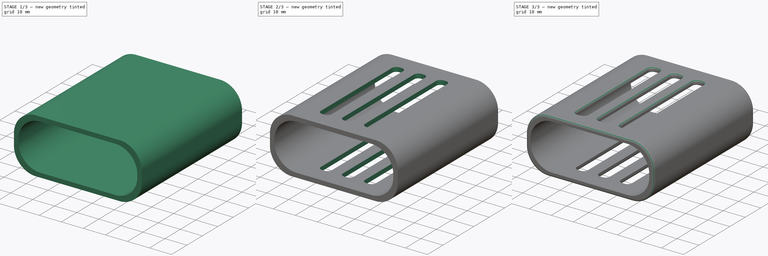
[diagram: build sequence overview — one tinted view per stage of 3, left to right]
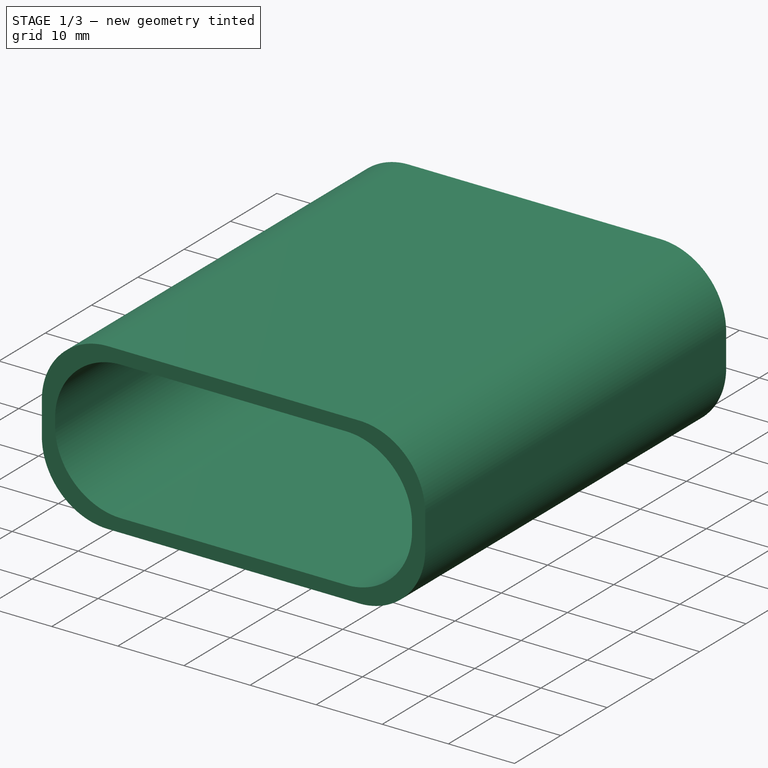
[diagram: stage 1 of 3 — iso view after this stage's code; geometry added in this stage tinted green]
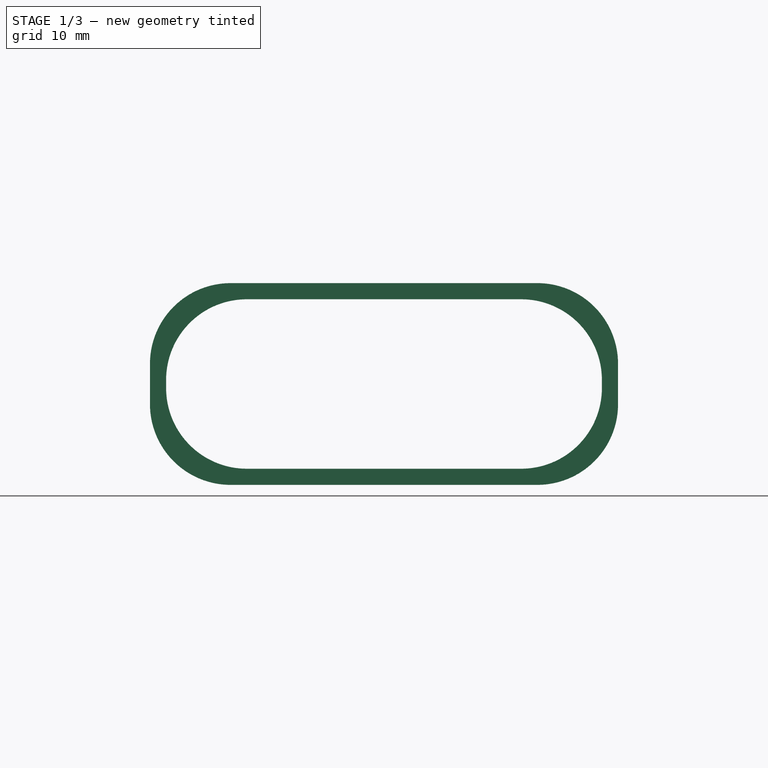
[diagram: stage 1 of 3 — front view after this stage's code; geometry added in this stage tinted green]
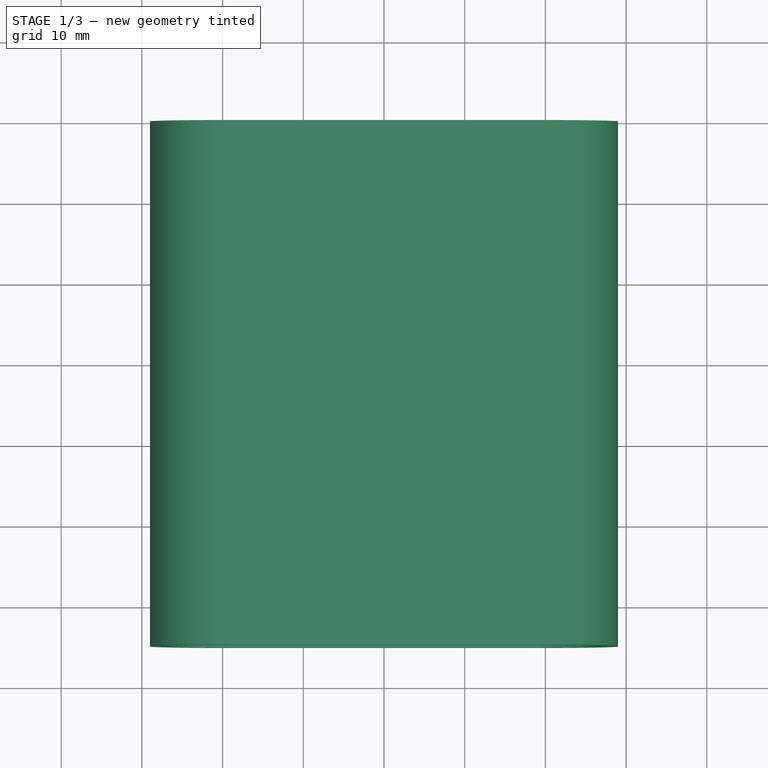
[diagram: stage 1 of 3 — top view after this stage's code; geometry added in this stage tinted green]
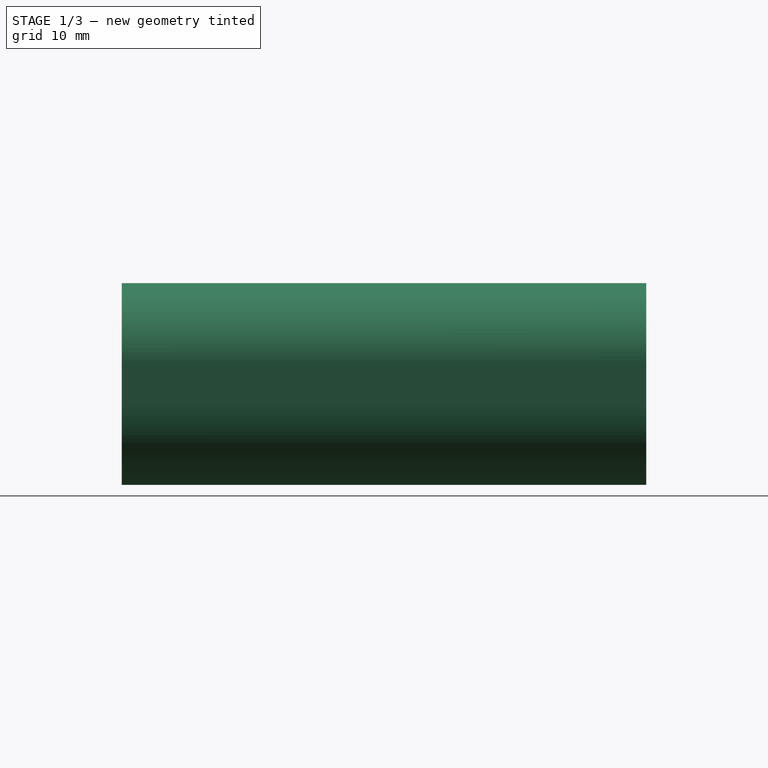
[diagram: stage 1 of 3 — right view after this stage's code; geometry added in this stage tinted green]
FCSTD DOCUMENT  (FreeCAD 0.20R29177 +426 (Git))
Label: Charger_Shell
License: All rights reserved
LicenseURL: http://en.wikipedia.org/wiki/All_rights_reserved
objects: PartDesign::Fillet×4, Sketcher::SketchObject×2, PartDesign::Pad×1, PartDesign::Pocket×1, PartDesign::Body×1
note: 15 computed .brp shape members not serialized (recipe doc carries the construction recipe); baked Part::Feature solids carry a one-line shape summary decoded from their .brp

FEATURE [Sketcher::SketchObject] Sketch
  FullyConstrained = true
  MapMode = 5
  Placement = pos=(0,0,0) rot=(1,0,0;1.5708rad)
  Support = -> [XZ_Plane]
  sketch-geometry (10):
    g0: LineSegment StartX=-27 StartY=-10.5 StartZ=0 EndX=-27 EndY=10.5 EndZ=0
    g1: LineSegment StartX=-27 StartY=10.5 StartZ=0 EndX=27 EndY=10.5 EndZ=0
    g2: LineSegment StartX=27 StartY=10.5 StartZ=0 EndX=27 EndY=-10.5 EndZ=0
    g3: LineSegment StartX=27 StartY=-10.5 StartZ=0 EndX=-27 EndY=-10.5 EndZ=0
    g4: GeomPoint X=0 Y=0 Z=0
    g5: LineSegment StartX=-29 StartY=-12.5 StartZ=0 EndX=-29 EndY=12.5 EndZ=0
    g6: LineSegment StartX=-29 StartY=12.5 StartZ=0 EndX=29 EndY=12.5 EndZ=0
    g7: LineSegment StartX=29 StartY=12.5 StartZ=0 EndX=29 EndY=-12.5 EndZ=0
    g8: LineSegment StartX=29 StartY=-12.5 StartZ=0 EndX=-29 EndY=-12.5 EndZ=0
    g9: GeomPoint X=0 Y=0 Z=0
  constraints (24):
    c: Coincident(g0,g1)
    c: Coincident(g1,g2)
    c: Coincident(g2,g3)
    c: Coincident(g3,g0)
    c: Horizontal(g1)
    c: Horizontal(g3)
    c: Vertical(g0)
    c: Vertical(g2)
    c: Symmetric(g1,g0,g4)
    c: Coincident(g4,g-1)
    c: DistanceY(g2,g2) = 21
    c: DistanceX(g1,g1) = 54
    c: Coincident(g5,g6)
    c: Coincident(g6,g7)
    c: Coincident(g7,g8)
    c: Coincident(g8,g5)
    c: Horizontal(g6)
    c: Horizontal(g8)
    c: Vertical(g5)
    c: Vertical(g7)
    c: Symmetric(g6,g5,g9)
    c: Coincident(g9,g4)
    c: DistanceX(g1,g6) = 2
    c: DistanceY(g1,g6) = 2
FEATURE [PartDesign::Pad] Pad
  Direction = (0,-1,2e-16)
  Length = 65
  Length2 = 10
  Placement = pos=(0,0,0) rot=(1,0,0;1.5708rad)
  Profile = -> Sketch
  ReferenceAxis = -> Sketch [N_Axis]
  Type = 0
FEATURE [PartDesign::Fillet] Fillet
  Base = -> Pad [Edge2,Edge20,Edge17,Edge1,Edge8,Edge13,Edge5,Edge14]
  BaseFeature = -> Pad
  Placement = pos=(0,0,0) rot=(1,0,0;1.5708rad)
  Radius = 10
  SupportTransform = false
  UseAllEdges = false
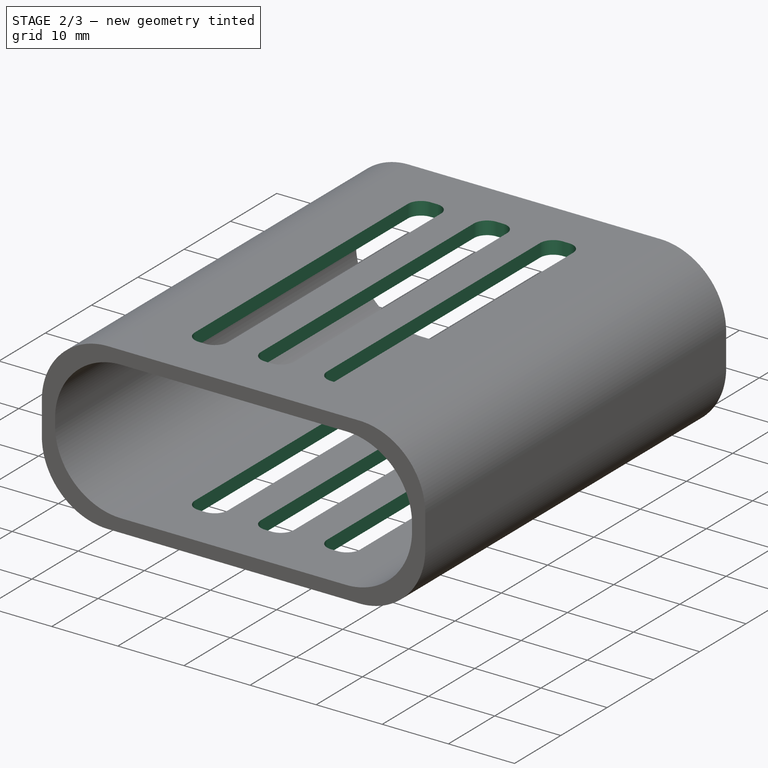
[diagram: stage 2 of 3 — iso view after this stage's code; geometry added in this stage tinted green]
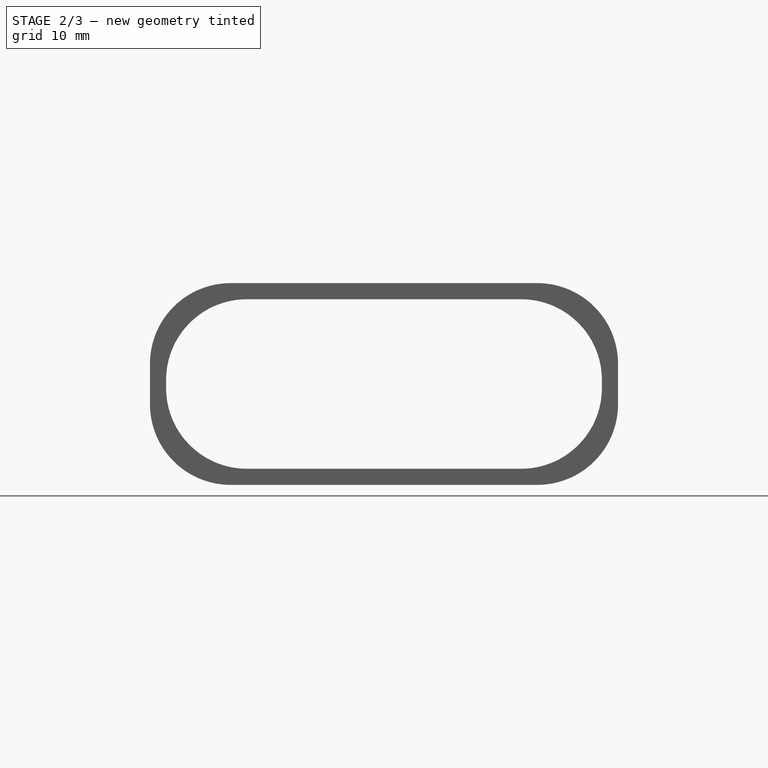
[diagram: stage 2 of 3 — front view after this stage's code; geometry added in this stage tinted green]
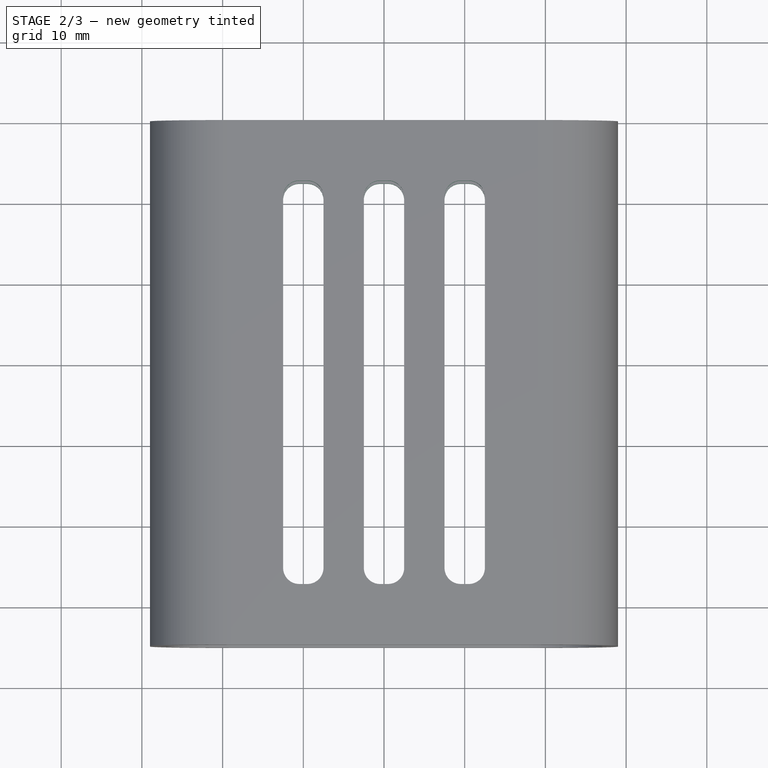
[diagram: stage 2 of 3 — top view after this stage's code; geometry added in this stage tinted green]
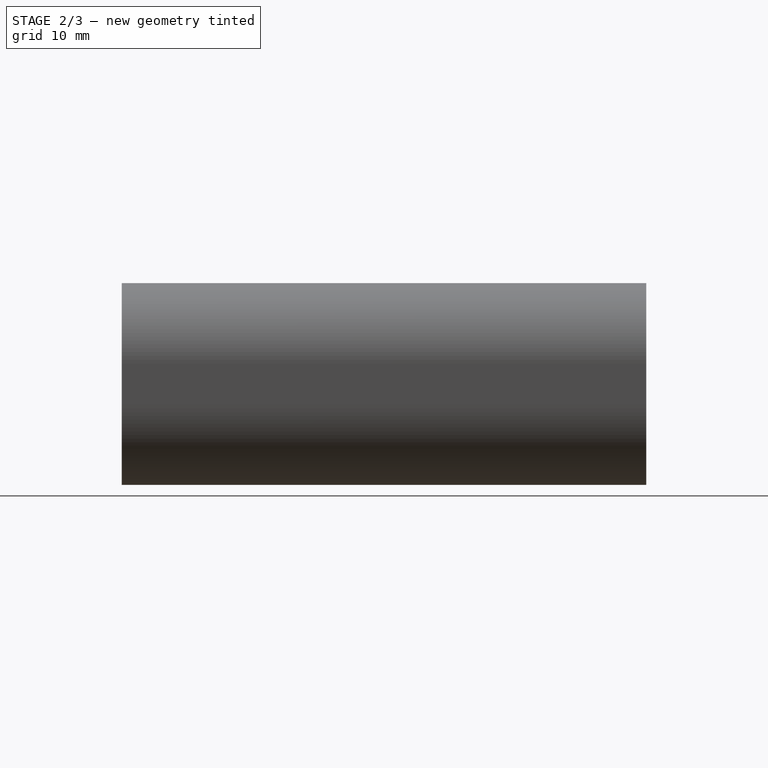
[diagram: stage 2 of 3 — right view after this stage's code; geometry added in this stage tinted green]
FEATURE [Sketcher::SketchObject] Sketch001
  ExternalGeometry = -> [Fillet]
  FullyConstrained = true
  MapMode = 5
  Placement = pos=(0,8.3e-15,12.5) rot=(0,0,1;3.14159rad)
  Support = -> [Fillet]
  sketch-geometry (16):
    g0: LineSegment StartX=2.5 StartY=57.5 StartZ=0 EndX=2.5 EndY=7.5 EndZ=0
    g1: LineSegment StartX=2.5 StartY=7.5 StartZ=0 EndX=-2.5 EndY=7.5 EndZ=0
    g2: LineSegment StartX=-2.5 StartY=7.5 StartZ=0 EndX=-2.5 EndY=57.5 EndZ=0
    g3: LineSegment StartX=-2.5 StartY=57.5 StartZ=0 EndX=2.5 EndY=57.5 EndZ=0
    g4: GeomPoint X=0 Y=32.5 Z=0
    g5: LineSegment StartX=-12.5 StartY=7.5 StartZ=0 EndX=-12.5 EndY=57.5 EndZ=0
    g6: LineSegment StartX=-12.5 StartY=57.5 StartZ=0 EndX=-7.5 EndY=57.5 EndZ=0
    g7: LineSegment StartX=-7.5 StartY=57.5 StartZ=0 EndX=-7.5 EndY=7.5 EndZ=0
    g8: LineSegment StartX=-7.5 StartY=7.5 StartZ=0 EndX=-12.5 EndY=7.5 EndZ=0
    g9: GeomPoint X=-10 Y=32.5 Z=0
    g10: LineSegment StartX=7.5 StartY=57.5 StartZ=0 EndX=7.5 EndY=7.5 EndZ=0
    g11: LineSegment StartX=7.5 StartY=7.5 StartZ=0 EndX=12.5 EndY=7.5 EndZ=0
    g12: LineSegment StartX=12.5 StartY=7.5 StartZ=0 EndX=12.5 EndY=57.5 EndZ=0
    g13: LineSegment StartX=12.5 StartY=57.5 StartZ=0 EndX=7.5 EndY=57.5 EndZ=0
    g14: GeomPoint X=10 Y=32.5 Z=0
    g15: GeomPoint X=19 Y=32.5 Z=0
  constraints (40):
    c: Coincident(g0,g1)
    c: Coincident(g1,g2)
    c: Coincident(g2,g3)
    c: Coincident(g3,g0)
    c: Horizontal(g1)
    c: Horizontal(g3)
    c: Vertical(g0)
    c: Vertical(g2)
    c: Symmetric(g1,g0,g4)
    c: Coincident(g5,g6)
    c: Coincident(g6,g7)
    c: Coincident(g7,g8)
    c: Coincident(g8,g5)
    c: Horizontal(g6)
    c: Horizontal(g8)
    c: Vertical(g5)
    c: Vertical(g7)
    c: Symmetric(g6,g5,g9)
    c: Coincident(g10,g11)
    c: Coincident(g11,g12)
    c: Coincident(g12,g13)
    c: Coincident(g13,g10)
    c: Horizontal(g11)
    c: Horizontal(g13)
    c: Vertical(g10)
    c: Vertical(g12)
    c: Symmetric(g11,g10,g14)
    c: Horizontal(g14,g4)
    c: Horizontal(g4,g9)
    c: Vertical(g4,g-1)
    c: Symmetric(g-3,g-3,g15)
    c: Horizontal(g15,g14)
    c: Equal(g7,g2)
    c: Equal(g2,g10)
    c: Equal(g8,g1)
    c: Equal(g1,g11)
    c: DistanceX(g1,g1) = 5
    c: DistanceY(g7,g7) = 50
    c: DistanceX(g9) = -10
    c: DistanceX(g4,g14) = 10
FEATURE [PartDesign::Pocket] Pocket
  BaseFeature = -> Fillet
  Direction = (0,-2e-16,-1)
  Length = 5
  Length2 = 5
  Placement = pos=(0,0,0) rot=(1,0,0;1.5708rad)
  Profile = -> Sketch001
  ReferenceAxis = -> Sketch001 [N_Axis]
  Type = 1
FEATURE [PartDesign::Fillet] Fillet001
  Base = -> Pocket [Edge112,Edge113,Edge119,Edge120,Edge114,Edge110,Edge117,Edge115,Edge109,Edge111,Edge116,Edge118,Edge102,Edge108,Edge105,Edge101,Edge100,Edge99,Edge107,Edge104,Edge97,Edge98,Edge103,Edge106]
  BaseFeature = -> Pocket
  Placement = pos=(0,0,0) rot=(1,0,0;1.5708rad)
  Radius = 2
  SupportTransform = false
  UseAllEdges = false
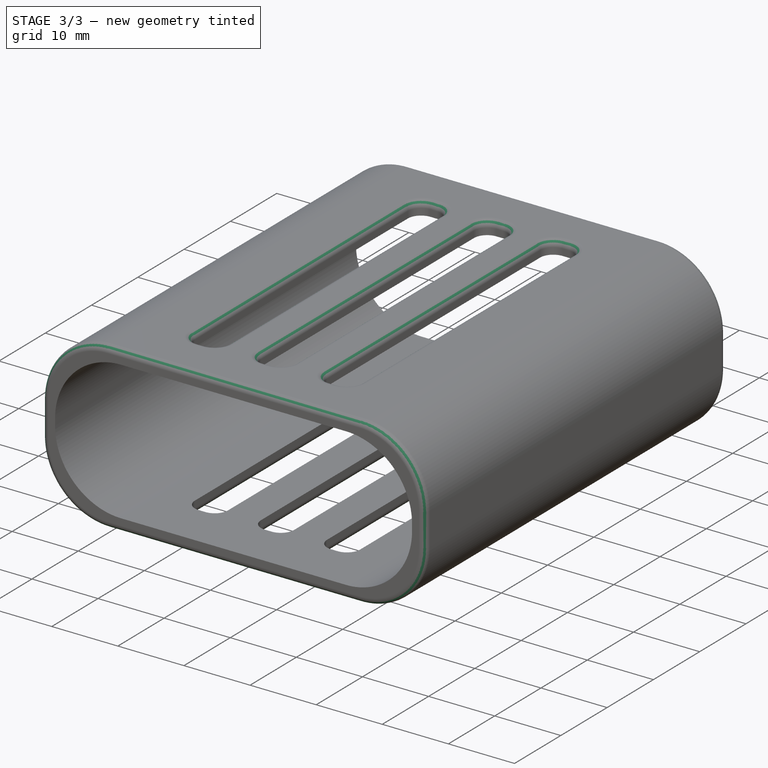
[diagram: stage 3 of 3 — iso view after this stage's code; geometry added in this stage tinted green]
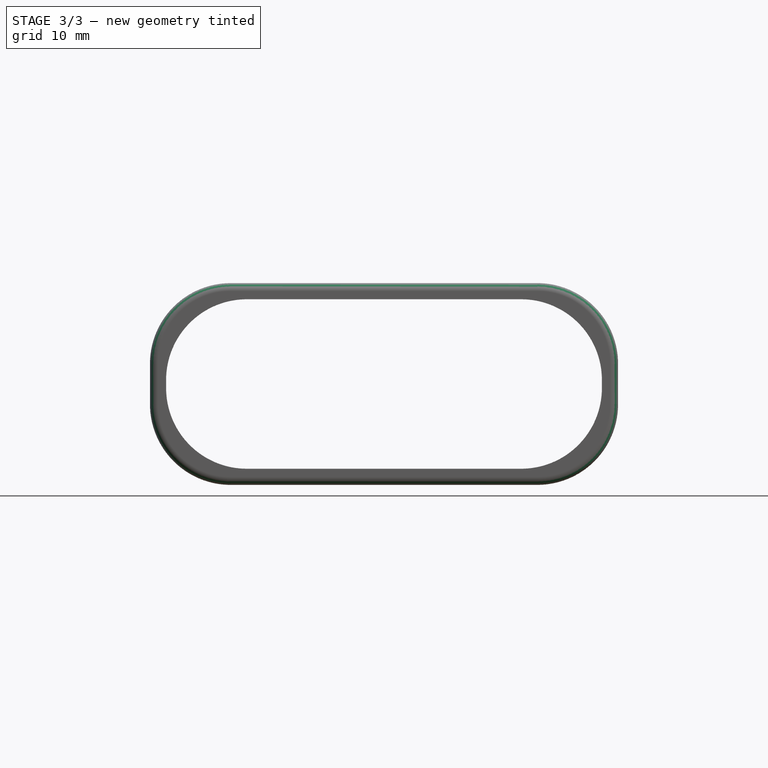
[diagram: stage 3 of 3 — front view after this stage's code; geometry added in this stage tinted green]
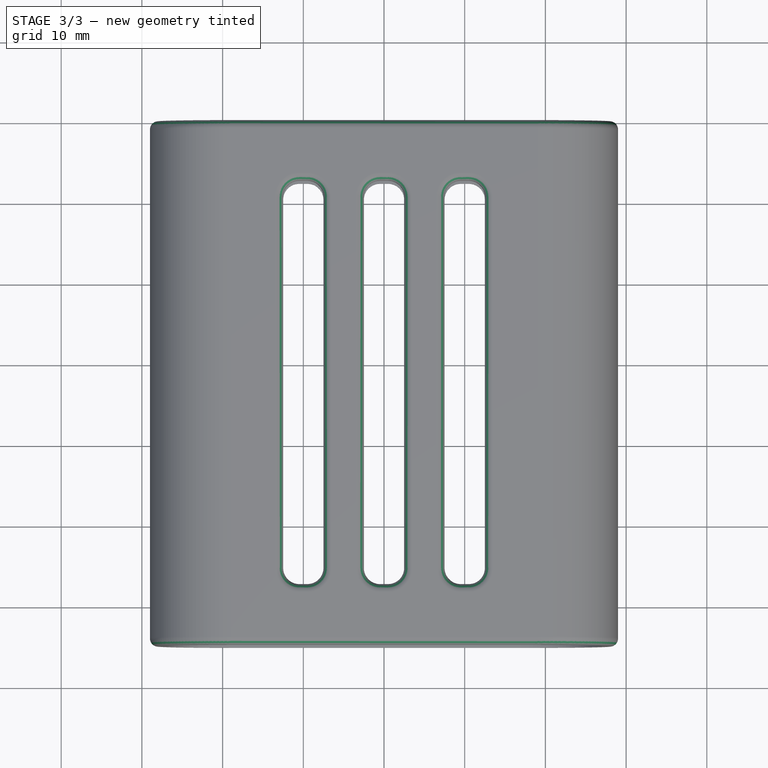
[diagram: stage 3 of 3 — top view after this stage's code; geometry added in this stage tinted green]
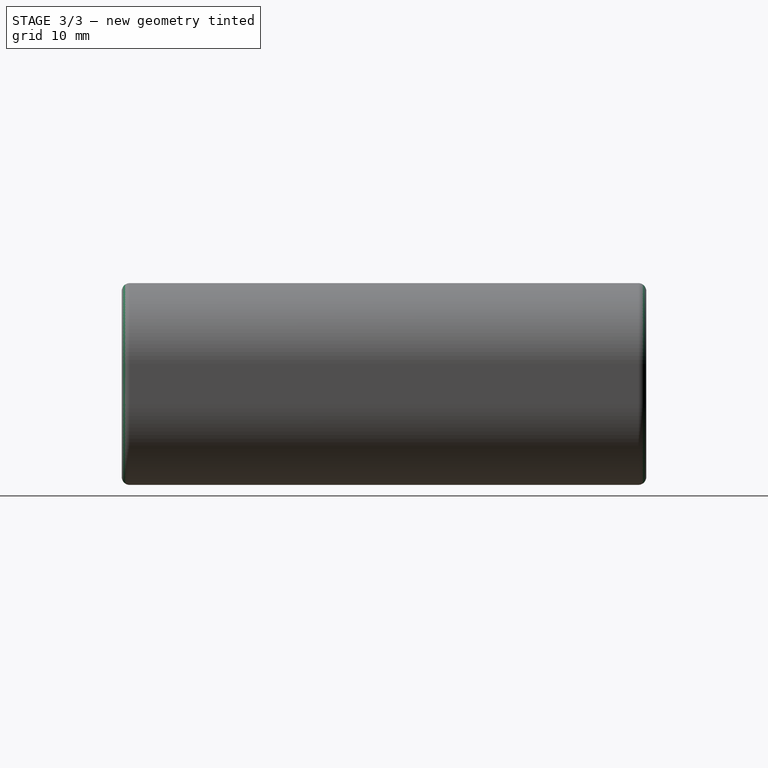
[diagram: stage 3 of 3 — right view after this stage's code; geometry added in this stage tinted green]
FEATURE [PartDesign::Fillet] Fillet002
  Base = -> Fillet001 [Edge46,Edge63]
  BaseFeature = -> Fillet001
  Placement = pos=(0,0,0) rot=(1,0,0;1.5708rad)
  Radius = 1
  SupportTransform = false
  UseAllEdges = false
FEATURE [PartDesign::Fillet] Fillet003
  Base = -> Fillet002 [Edge28,Edge17,Edge8,Edge197,Edge188,Edge177]
  BaseFeature = -> Fillet002
  Placement = pos=(0,0,0) rot=(1,0,0;1.5708rad)
  Radius = 1
  SupportTransform = false
  UseAllEdges = false
FEATURE [PartDesign::Body] Body
  Group = -> [Sketch,Pad,Fillet,Sketch001,Pocket,Fillet001,Fillet002,Fillet003]
  Origin = -> Origin
  Tip = -> Fillet003
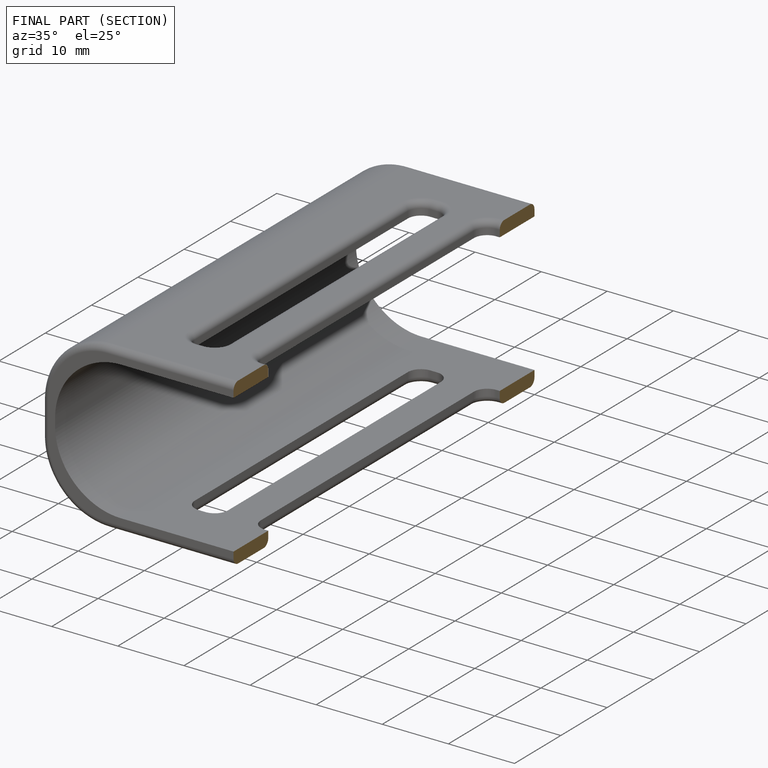
[diagram: finished part — half-section view (interior)]
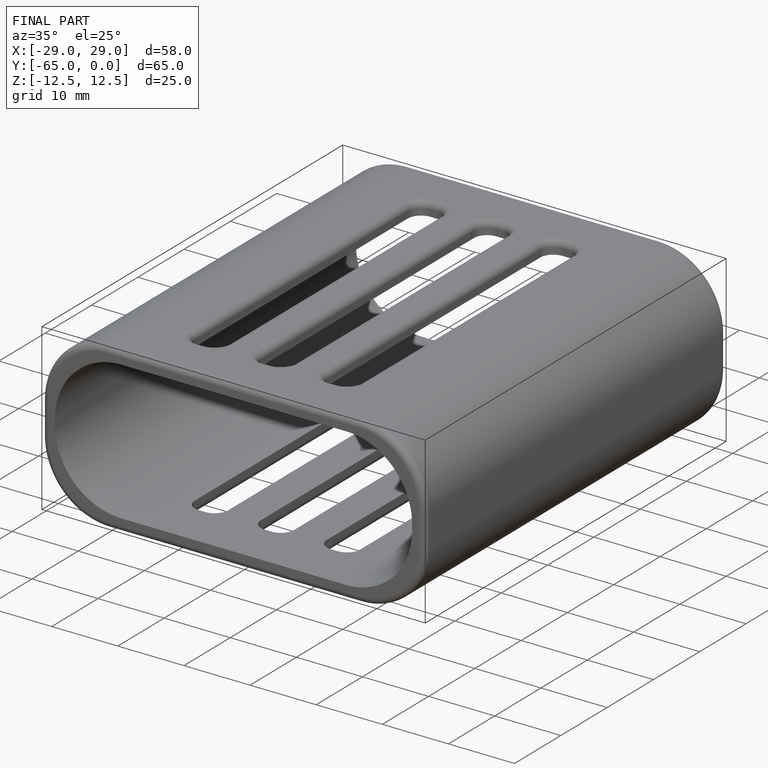
[diagram: finished part — iso view with bounding-box wireframe]
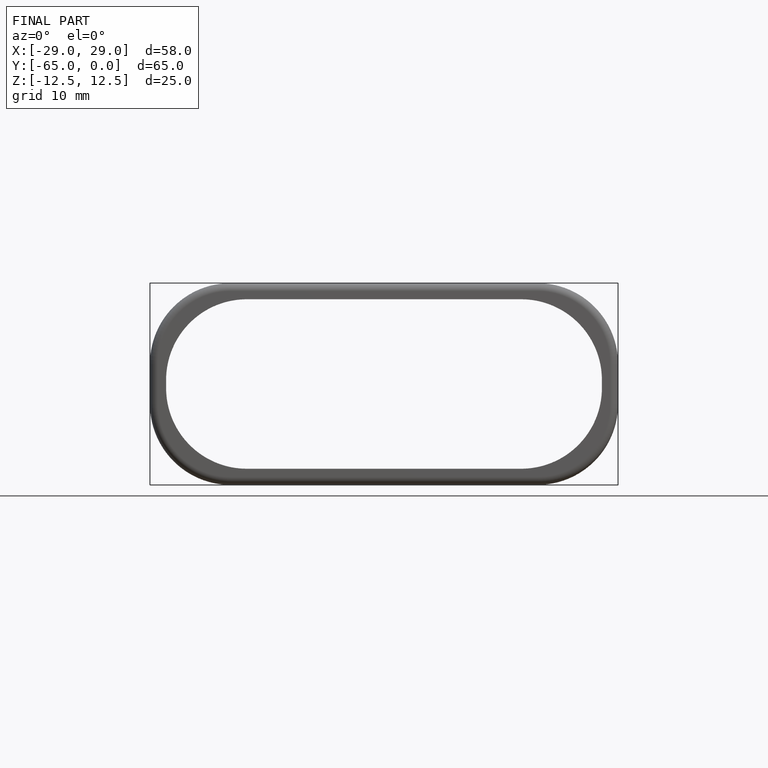
[diagram: finished part — front view with bounding-box wireframe]
